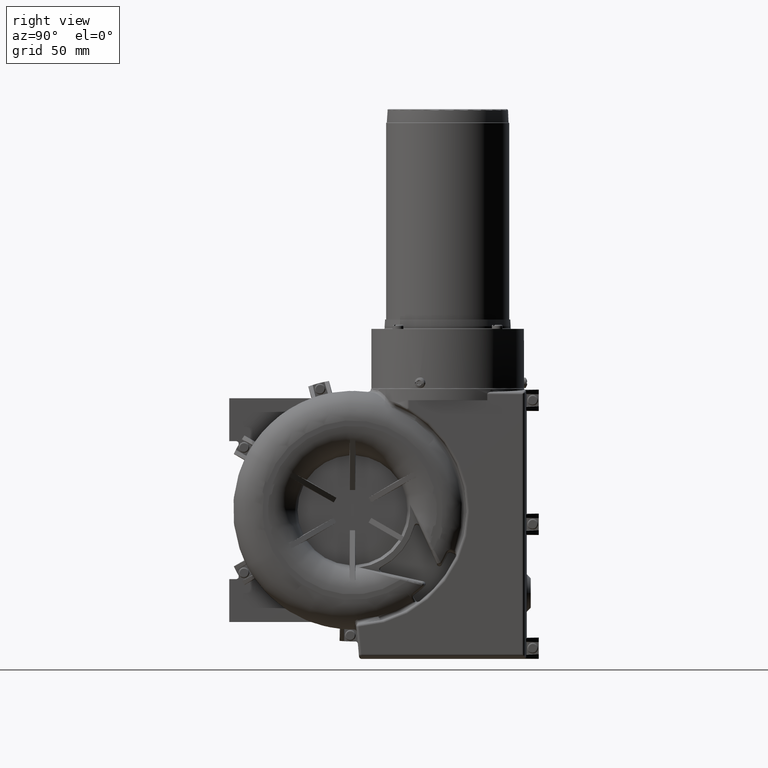
[diagram: clean part render]
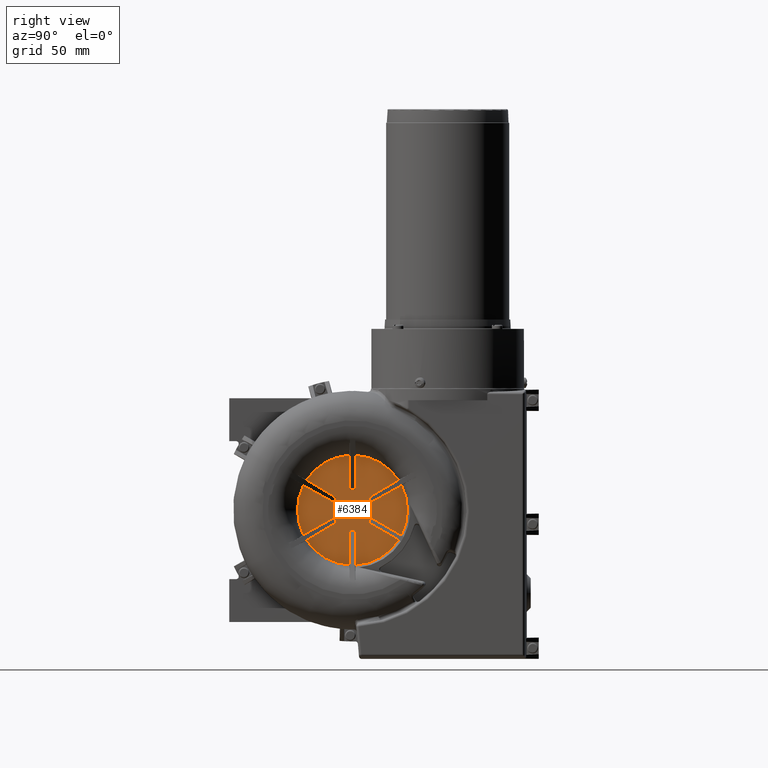
[diagram: same view with one face highlighted and labeled with its STEP entity id]
A machine part, right view. The second image highlights one B-rep face of the part: STEP entity #6384.
In plain terms, the highlighted planar face has unit normal (-1, 0, 0).
Its self-contained STEP definition (entity closure, byte-faithful):
#6384 = ADVANCED_FACE( '', ( #13390 ), #13391, .F. );
#13390 = FACE_OUTER_BOUND( '', #25560, .T. );
#13391 = PLANE( '', #25561 );
#25560 = EDGE_LOOP( '', ( #46481, #46482, #46483, #46484, #46485, #46486, #46487, #46488, #46489, #46490, #46491, #46492, #46493, #46494, #46495, #46496, #46497, #46498, #46499, #46500, #46501, #46502, #46503, #46504 ) );
#25561 = AXIS2_PLACEMENT_3D( '', #46505, #46506, #46507 );
#46481 = ORIENTED_EDGE( '', *, *, #54664, .T. );
#46482 = ORIENTED_EDGE( '', *, *, #56196, .T. );
#46483 = ORIENTED_EDGE( '', *, *, #55291, .T. );
#46484 = ORIENTED_EDGE( '', *, *, #57415, .F. );
#46485 = ORIENTED_EDGE( '', *, *, #53826, .T. );
#46486 = ORIENTED_EDGE( '', *, *, #57195, .T. );
#46487 = ORIENTED_EDGE( '', *, *, #55288, .F. );
#46488 = ORIENTED_EDGE( '', *, *, #54695, .F. );
#46489 = ORIENTED_EDGE( '', *, *, #55295, .T. );
#46490 = ORIENTED_EDGE( '', *, *, #52689, .T. );
#46491 = ORIENTED_EDGE( '', *, *, #55285, .F. );
#46492 = ORIENTED_EDGE( '', *, *, #57371, .F. );
#46493 = ORIENTED_EDGE( '', *, *, #52141, .T. );
#46494 = ORIENTED_EDGE( '', *, *, #52790, .T. );
#46495 = ORIENTED_EDGE( '', *, *, #55283, .F. );
#46496 = ORIENTED_EDGE( '', *, *, #54069, .F. );
#46497 = ORIENTED_EDGE( '', *, *, #56441, .T. );
#46498 = ORIENTED_EDGE( '', *, *, #57416, .T. );
#46499 = ORIENTED_EDGE( '', *, *, #55279, .F. );
#46500 = ORIENTED_EDGE( '', *, *, #53849, .F. );
#46501 = ORIENTED_EDGE( '', *, *, #50190, .T. );
#46502 = ORIENTED_EDGE( '', *, *, #56754, .T. );
#46503 = ORIENTED_EDGE( '', *, *, #55277, .F. );
#46504 = ORIENTED_EDGE( '', *, *, #50430, .T. );
#46505 = CARTESIAN_POINT( '', ( 24.0000000000005, 41.0227390241572, 0.000000000000000 ) );
#46506 = DIRECTION( '', ( -1.00000000000000, 0.000000000000000, 0.000000000000000 ) );
#46507 = DIRECTION( '', ( 0.000000000000000, 0.000000000000000, 1.00000000000000 ) );
#50190 = EDGE_CURVE( '', #59791, #59789, #59792, .T. );
#50430 = EDGE_CURVE( '', #60224, #60225, #60226, .T. );
#52141 = EDGE_CURVE( '', #63118, #63116, #63119, .T. );
#52689 = EDGE_CURVE( '', #64015, #64012, #64016, .T. );
#52790 = EDGE_CURVE( '', #63116, #64171, #64173, .T. );
#53826 = EDGE_CURVE( '', #65731, #65729, #65732, .T. );
#53849 = EDGE_CURVE( '', #59791, #65761, #65762, .T. );
#54069 = EDGE_CURVE( '', #66072, #66074, #66075, .T. );
#54664 = EDGE_CURVE( '', #60225, #66913, #66915, .T. );
#54695 = EDGE_CURVE( '', #66957, #66959, #66960, .T. );
#55277 = EDGE_CURVE( '', #60224, #67768, #67769, .T. );
#55279 = EDGE_CURVE( '', #65761, #67771, #67772, .T. );
#55283 = EDGE_CURVE( '', #66074, #64171, #67778, .T. );
#55285 = EDGE_CURVE( '', #67779, #64012, #67781, .T. );
#55288 = EDGE_CURVE( '', #66959, #67785, #67786, .T. );
#55291 = EDGE_CURVE( '', #67790, #67788, #67791, .T. );
#55295 = EDGE_CURVE( '', #66957, #64015, #67795, .T. );
#56196 = EDGE_CURVE( '', #66913, #67790, #68944, .T. );
#56441 = EDGE_CURVE( '', #66072, #69236, #69238, .T. );
#56754 = EDGE_CURVE( '', #59789, #67768, #69619, .T. );
#57195 = EDGE_CURVE( '', #65729, #67785, #70103, .T. );
#57371 = EDGE_CURVE( '', #63118, #67779, #70293, .T. );
#57415 = EDGE_CURVE( '', #65731, #67788, #70338, .T. );
#57416 = EDGE_CURVE( '', #69236, #67771, #70339, .T. );
#59789 = VERTEX_POINT( '', #74395 );
#59791 = VERTEX_POINT( '', #74398 );
#59792 = LINE( '', #74399, #74400 );
#60224 = VERTEX_POINT( '', #75212 );
#60225 = VERTEX_POINT( '', #75213 );
#60226 = LINE( '', #75214, #75215 );
#63116 = VERTEX_POINT( '', #80851 );
#63118 = VERTEX_POINT( '', #80854 );
#63119 = LINE( '', #80855, #80856 );
#64012 = VERTEX_POINT( '', #82530 );
#64015 = VERTEX_POINT( '', #82557 );
#64016 = LINE( '', #82558, #82559 );
#64171 = VERTEX_POINT( '', #82933 );
#64173 = LINE( '', #82959, #82960 );
#65729 = VERTEX_POINT( '', #85675 );
#65731 = VERTEX_POINT( '', #85678 );
#65732 = LINE( '', #85679, #85680 );
#65761 = VERTEX_POINT( '', #85760 );
#65762 = B_SPLINE_CURVE_WITH_KNOTS( '', 1, ( #85761, #85762 ), .UNSPECIFIED., .F., .F., ( 2, 2 ), ( 0.000000000000000, 1.00000000000000 ), .UNSPECIFIED. );
#66072 = VERTEX_POINT( '', #86289 );
#66074 = VERTEX_POINT( '', #86292 );
#66075 = B_SPLINE_CURVE_WITH_KNOTS( '', 1, ( #86293, #86294 ), .UNSPECIFIED., .F., .F., ( 2, 2 ), ( 0.000000000000000, 1.00000000000000 ), .UNSPECIFIED. );
#66913 = VERTEX_POINT( '', #87941 );
#66915 = LINE( '', #87944, #87945 );
#66957 = VERTEX_POINT( '', #88025 );
#66959 = VERTEX_POINT( '', #88028 );
#66960 = LINE( '', #88029, #88030 );
#67768 = VERTEX_POINT( '', #89531 );
#67769 = CIRCLE( '', #89532, 41.0227390241572 );
#67771 = VERTEX_POINT( '', #89558 );
#67772 = CIRCLE( '', #89559, 41.0227390241572 );
#67778 = CIRCLE( '', #89589, 41.0227390241572 );
#67779 = VERTEX_POINT( '', #89590 );
#67781 = CIRCLE( '', #89608, 41.0227390241572 );
#67785 = VERTEX_POINT( '', #89618 );
#67786 = CIRCLE( '', #89619, 41.0227390241572 );
#67788 = VERTEX_POINT( '', #89645 );
#67790 = VERTEX_POINT( '', #89663 );
#67791 = CIRCLE( '', #89664, 41.0227390241572 );
#67795 = LINE( '', #89688, #89689 );
#68944 = LINE( '', #91837, #91838 );
#69236 = VERTEX_POINT( '', #92381 );
#69238 = LINE( '', #92384, #92385 );
#69619 = LINE( '', #93161, #93162 );
#70103 = LINE( '', #94034, #94035 );
#70293 = LINE( '', #94358, #94359 );
#70338 = B_SPLINE_CURVE_WITH_KNOTS( '', 1, ( #94436, #94437 ), .UNSPECIFIED., .F., .F., ( 2, 2 ), ( 0.000000000000000, 1.00000000000000 ), .UNSPECIFIED. );
#70339 = LINE( '', #94438, #94439 );
#74395 = CARTESIAN_POINT( '', ( 24.0000000000005, 1.99999999999992, -15.0000000000010 ) );
#74398 = CARTESIAN_POINT( '', ( 24.0000000000005, -1.99999999999990, -15.0000000000010 ) );
#74399 = CARTESIAN_POINT( '', ( 24.0000000000005, -1.99999999999988, -15.0000000000010 ) );
#74400 = VECTOR( '', #96412, 1000.00000000000 );
#75212 = CARTESIAN_POINT( '', ( 24.0000000000005, 34.4844872836442, -22.2190290928416 ) );
#75213 = CARTESIAN_POINT( '', ( 24.0000000000005, 11.9903810567654, -9.23205080757057 ) );
#75214 = CARTESIAN_POINT( '', ( 24.0000000000005, 34.4844872836434, -22.2190290928410 ) );
#75215 = VECTOR( '', #96758, 1000.00000000000 );
#80851 = CARTESIAN_POINT( '', ( 24.0000000000005, -13.9903810567661, 5.76794919243104 ) );
#80854 = CARTESIAN_POINT( '', ( 24.0000000000042, -11.9903810567641, 9.23205080756946 ) );
#80855 = CARTESIAN_POINT( '', ( 24.0000000000005, -11.9903810567668, 9.23205080756834 ) );
#80856 = VECTOR( '', #98780, 1000.00000000000 );
#82530 = CARTESIAN_POINT( '', ( 24.0000000000005, -2.39842182755298, 40.9525531222784 ) );
#82557 = CARTESIAN_POINT( '', ( 24.0000000000005, -2.00000000000013, 15.0000000000010 ) );
#82558 = CARTESIAN_POINT( '', ( 24.0000000000005, -2.00000000000013, 15.0000000000010 ) );
#82559 = VECTOR( '', #99408, 1000.00000000000 );
#82933 = CARTESIAN_POINT( '', ( 24.0000000000005, -36.6651622675070, 18.3991823294862 ) );
#82959 = CARTESIAN_POINT( '', ( 24.0000000000005, -13.9903810567664, 5.76794919243008 ) );
#82960 = VECTOR( '', #99518, 1000.00000000000 );
#85675 = CARTESIAN_POINT( '', ( 24.0000000000005, 11.9903810567668, 9.23205080756785 ) );
#85678 = CARTESIAN_POINT( '', ( 23.9999999999986, 13.9903810567674, 5.76794919243023 ) );
#85679 = CARTESIAN_POINT( '', ( 24.0000000000005, 13.9903810567664, 5.76794919243008 ) );
#85680 = VECTOR( '', #100853, 1000.00000000000 );
#85760 = CARTESIAN_POINT( '', ( 24.0000000178513, -2.39842193961917, -40.9525277031085 ) );
#85761 = CARTESIAN_POINT( '', ( 24.0000000000005, -1.99999999999997, -15.0000000000009 ) );
#85762 = CARTESIAN_POINT( '', ( 24.0000000000005, -2.39842027582456, -40.9524891225856 ) );
#86289 = CARTESIAN_POINT( '', ( 23.9999999999985, -13.9903810567671, -5.76794919243082 ) );
#86292 = CARTESIAN_POINT( '', ( 24.0000000130850, -36.6651410501593, -18.3991702627569 ) );
#86293 = CARTESIAN_POINT( '', ( 24.0000000000005, -13.9903810567661, -5.76794919243068 ) );
#86294 = CARTESIAN_POINT( '', ( 24.0000000000005, -36.6651735494184, -18.3991892656946 ) );
#87941 = CARTESIAN_POINT( '', ( 24.0000000000017, 13.9903810567775, -5.76794919243762 ) );
#87944 = CARTESIAN_POINT( '', ( 24.0000000000005, 11.9903810567668, -9.23205080756834 ) );
#87945 = VECTOR( '', #101747, 1000.00000000000 );
#88025 = CARTESIAN_POINT( '', ( 24.0000000000028, 1.99999999999988, 14.9999999999998 ) );
#88028 = CARTESIAN_POINT( '', ( 24.0000022373817, 2.39842197861199, 40.9525190045357 ) );
#88029 = CARTESIAN_POINT( '', ( 24.0000000000005, 1.99999999999988, 15.0000000000010 ) );
#88030 = VECTOR( '', #101790, 1000.00000000000 );
#89531 = CARTESIAN_POINT( '', ( 24.0000000000005, 2.39842182715400, -40.9525531367165 ) );
#89532 = AXIS2_PLACEMENT_3D( '', #102424, #102425, #102426 );
#89558 = CARTESIAN_POINT( '', ( 24.0000000000006, -34.2667404399519, -22.5533707927901 ) );
#89559 = AXIS2_PLACEMENT_3D( '', #102427, #102428, #102429 );
#89589 = AXIS2_PLACEMENT_3D( '', #102436, #102437, #102438 );
#89590 = CARTESIAN_POINT( '', ( 23.9999991432572, -34.2667187417435, 22.5533590506473 ) );
#89608 = AXIS2_PLACEMENT_3D( '', #102439, #102440, #102441 );
#89618 = CARTESIAN_POINT( '', ( 24.0000000000005, 34.2667404526503, 22.5533707996675 ) );
#89619 = AXIS2_PLACEMENT_3D( '', #102445, #102446, #102447 );
#89645 = CARTESIAN_POINT( '', ( 24.0000000130800, 36.6651410627112, 18.3991702700956 ) );
#89663 = CARTESIAN_POINT( '', ( 24.0000000000005, 36.4844872836521, -18.7549274777009 ) );
#89664 = AXIS2_PLACEMENT_3D( '', #102448, #102449, #102450 );
#89688 = CARTESIAN_POINT( '', ( 24.0000000000005, 1.99999999999988, 15.0000000000010 ) );
#89689 = VECTOR( '', #102454, 1000.00000000000 );
#91837 = CARTESIAN_POINT( '', ( 24.0000000000005, 13.9903810567664, -5.76794919243008 ) );
#91838 = VECTOR( '', #103475, 1000.00000000000 );
#92381 = CARTESIAN_POINT( '', ( 24.0000000000005, -11.9903810567653, -9.23205080757038 ) );
#92384 = CARTESIAN_POINT( '', ( 24.0000000000005, -13.9903810567664, -5.76794919243008 ) );
#92385 = VECTOR( '', #103707, 1000.00000000000 );
#93161 = CARTESIAN_POINT( '', ( 24.0000000000005, 1.99999999999988, -15.0000000000010 ) );
#93162 = VECTOR( '', #103970, 1000.00000000000 );
#94034 = CARTESIAN_POINT( '', ( 24.0000000000005, 11.9903810567668, 9.23205080756834 ) );
#94035 = VECTOR( '', #104351, 1000.00000000000 );
#94358 = CARTESIAN_POINT( '', ( 24.0000000000005, -11.9903810567668, 9.23205080756834 ) );
#94359 = VECTOR( '', #104497, 1000.00000000000 );
#94436 = CARTESIAN_POINT( '', ( 24.0000000000005, 13.9903810567661, 5.76794919243069 ) );
#94437 = CARTESIAN_POINT( '', ( 24.0000000000005, 36.6651735494183, 18.3991892656945 ) );
#94438 = CARTESIAN_POINT( '', ( 24.0000000000005, -11.9903810567668, -9.23205080756834 ) );
#94439 = VECTOR( '', #104518, 1000.00000000000 );
#96412 = DIRECTION( '', ( 0.000000000000000, 1.00000000000000, -1.05748743095500E-014 ) );
#96758 = DIRECTION( '', ( 0.000000000000000, -0.866025403784429, 0.500000000000017 ) );
#98780 = DIRECTION( '', ( 0.000000000000000, -0.500000000000017, -0.866025403784429 ) );
#99408 = DIRECTION( '', ( 0.000000000000000, -0.0153501011856008, 0.999882180256050 ) );
#99518 = DIRECTION( '', ( 0.000000000000000, -0.873598419485922, 0.486647512550612 ) );
#100853 = DIRECTION( '', ( 0.000000000000000, -0.500000000000017, 0.866025403784429 ) );
#101747 = DIRECTION( '', ( 0.000000000000000, 0.500000000000017, 0.866025403784429 ) );
#101790 = DIRECTION( '', ( 0.000000000000000, 0.0153501011855993, 0.999882180256050 ) );
#102424 = CARTESIAN_POINT( '', ( 24.0000000000005, 0.000000000000000, 0.000000000000000 ) );
#102425 = DIRECTION( '', ( -1.00000000000000, 0.000000000000000, 0.000000000000000 ) );
#102426 = DIRECTION( '', ( 0.000000000000000, 0.840618839793641, -0.541627146830726 ) );
#102427 = CARTESIAN_POINT( '', ( 24.0000000000005, 0.000000000000000, 0.000000000000000 ) );
#102428 = DIRECTION( '', ( -1.00000000000000, -0.000000000000000, 0.000000000000000 ) );
#102429 = DIRECTION( '', ( 0.000000000000000, -0.0584656587695511, -0.998289420330919 ) );
#102436 = CARTESIAN_POINT( '', ( 24.0000000000005, 0.000000000000000, 0.000000000000000 ) );
#102437 = DIRECTION( '', ( -1.00000000000000, -0.000000000000000, 0.000000000000000 ) );
#102438 = DIRECTION( '', ( 0.000000000000000, -0.893776827720609, -0.448511964422004 ) );
#102439 = CARTESIAN_POINT( '', ( 24.0000000000005, 0.000000000000000, 0.000000000000000 ) );
#102440 = DIRECTION( '', ( -1.00000000000000, 0.000000000000000, 0.000000000000000 ) );
#102441 = DIRECTION( '', ( 0.000000000000000, -0.835311168951021, 0.549777455908914 ) );
#102445 = CARTESIAN_POINT( '', ( 24.0000000000005, 0.000000000000000, 0.000000000000000 ) );
#102446 = DIRECTION( '', ( -1.00000000000000, 0.000000000000000, 0.000000000000000 ) );
#102447 = DIRECTION( '', ( 0.000000000000000, 0.0584656587695511, 0.998289420330919 ) );
#102448 = CARTESIAN_POINT( '', ( 24.0000000000005, 0.000000000000000, 0.000000000000000 ) );
#102449 = DIRECTION( '', ( 1.00000000000000, 0.000000000000000, 0.000000000000000 ) );
#102450 = DIRECTION( '', ( 0.000000000000000, 0.889372288431523, -0.457183696745712 ) );
#102454 = DIRECTION( '', ( 0.000000000000000, -1.00000000000000, 1.05748743095500E-014 ) );
#103475 = DIRECTION( '', ( 0.000000000000000, 0.866025403784429, -0.500000000000017 ) );
#103707 = DIRECTION( '', ( 0.000000000000000, 0.500000000000017, -0.866025403784429 ) );
#103970 = DIRECTION( '', ( 0.000000000000000, 0.0153501011856008, -0.999882180256050 ) );
#104351 = DIRECTION( '', ( 0.000000000000000, 0.858248318300315, 0.513234667705409 ) );
#104497 = DIRECTION( '', ( 0.000000000000000, -0.858248318300315, 0.513234667705409 ) );
#104518 = DIRECTION( '', ( 0.000000000000000, -0.858248318300315, -0.513234667705409 ) );